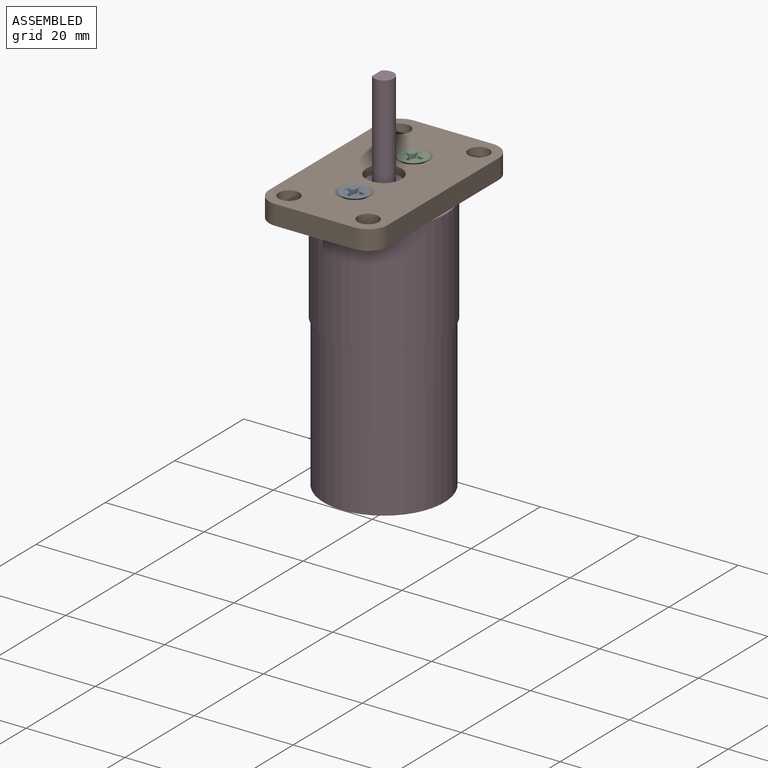
[diagram: assembled view]
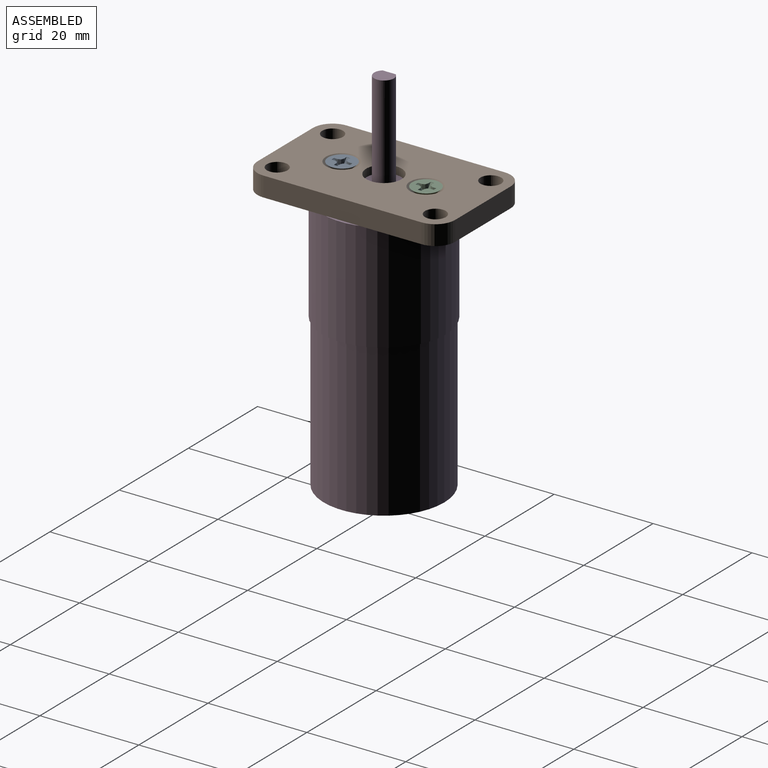
[diagram: assembled view, second angle]
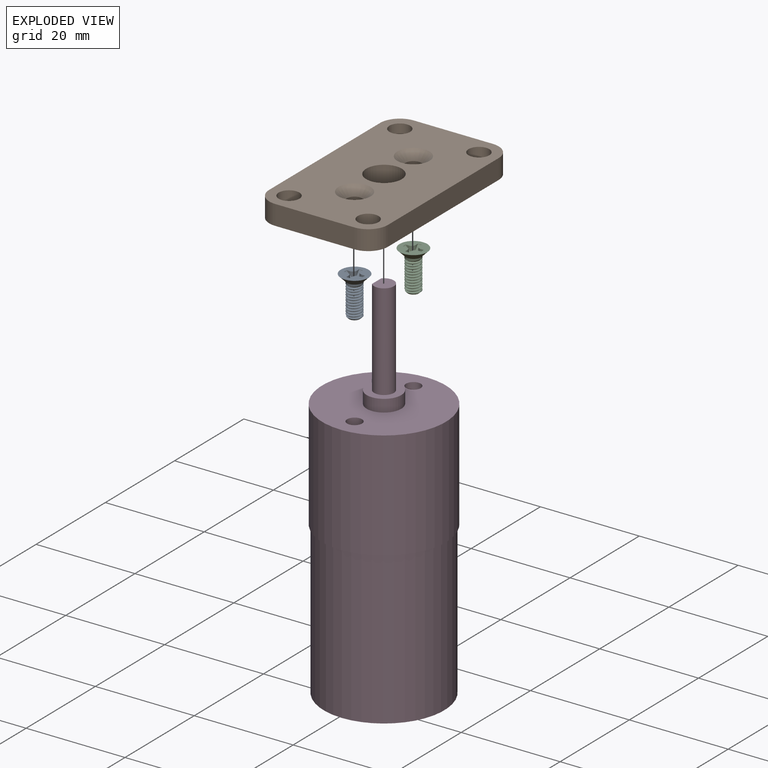
[diagram: exploded view]
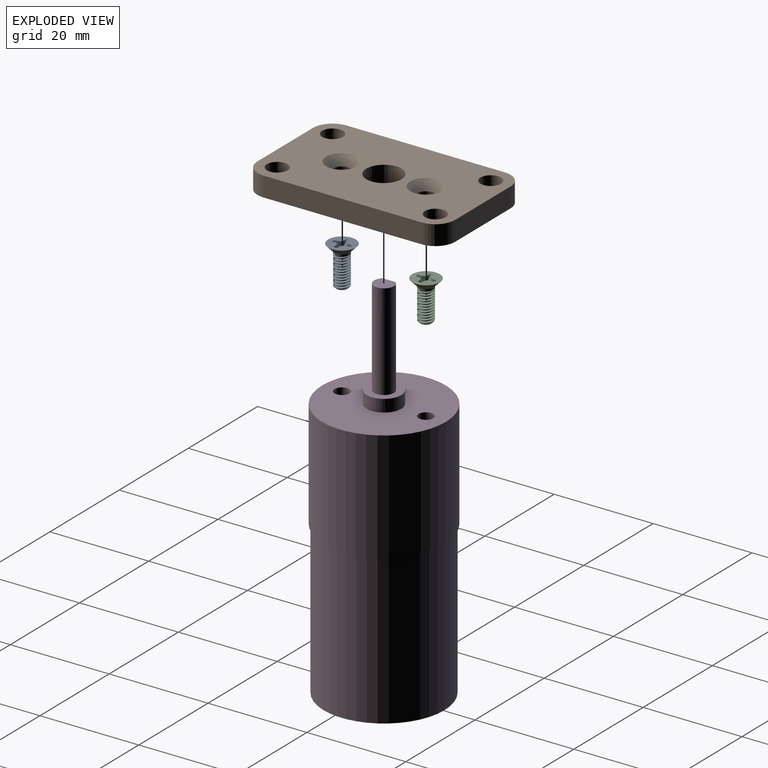
[diagram: exploded view, second angle]
ASSEMBLY  parts=4 mates=3
PART A: 43 faces, bbox 5.7x5.7x8.3 mm
  f0: cone r=2.36mm half-angle=45deg, axis (0,0,1), area 7.3mm2, adj f1,f24,f25,f26,f27,f28,f29,f30
  f1: cone r=1.87mm half-angle=15deg, axis (0,0,1), area 0.1mm2, adj f0,f20,f28,f39
  f2: cylinder r=1.18mm len=5.98mm, axis (0,0,1), area 5.5mm2, adj f3,f5,f22,f23
  f3: cone r=1.5mm half-angle=45deg, axis (0,0,1), area 2mm2, adj f2,f4,f21,f22,f23
  f4: cone r=1.5mm half-angle=45deg, axis (0,0,1), area 0.4mm2, adj f3,f7,f22,f23
  f5: cone r=1.5mm half-angle=45deg, axis (0,0,1), area 2mm2, adj f2,f18,f22,f23
  f6: cylinder r=1.5mm len=3mm, axis (0,0,-1), area 0.6mm2, adj f7,f8,f22,f23
  f7: cylinder r=1.5mm len=1.07mm, axis (0,0,-1), area 0mm2, adj f4,f6,f23
  f8: cylinder r=1.5mm len=3mm, axis (0,0,-1), area 0.6mm2, adj f6,f9,f22,f23
  f9: cylinder r=1.5mm len=3mm, axis (0,0,-1), area 0.6mm2, adj f8,f10,f22,f23
  f10: cylinder r=1.5mm len=3mm, axis (0,0,-1), area 0.6mm2, adj f9,f11,f22,f23
  f11: cylinder r=1.5mm len=3mm, axis (0,0,-1), area 0.6mm2, adj f10,f12,f22,f23
  f12: cylinder r=1.5mm len=3mm, axis (0,0,-1), area 0.6mm2, adj f11,f13,f22,f23
  f13: cylinder r=1.5mm len=3mm, axis (0,0,-1), area 0.6mm2, adj f12,f14,f22,f23
  f14: cylinder r=1.5mm len=3mm, axis (0,0,-1), area 0.6mm2, adj f13,f15,f22,f23
  f15: cylinder r=1.5mm len=3mm, axis (0,0,-1), area 0.6mm2, adj f14,f16,f22,f23
  f16: cylinder r=1.5mm len=3mm, axis (0,0,-1), area 0.6mm2, adj f15,f17,f22,f23
  f17: cylinder r=1.5mm len=3mm, axis (0,0,-1), area 0.6mm2, adj f16,f18,f22,f23
  f18: cylinder r=1.5mm len=3mm, axis (0,0,-1), area 3.8mm2, adj f5,f17,f19,f22,f23
  f19: cone r=2.8mm half-angle=45deg, axis (0,0,1), area 24.8mm2, adj f18,f20
  f20: plane 5.6x5.6mm, normal (0,0,1), area 19mm2, adj f1,f19,f24,f25,f26,f27,f28,f29
  f21: plane 2.25x2.25mm, normal (0,0,-1), area 4mm2, adj f3
  f22: bspline ~6.3x2.96mm, area 37.7mm2, adj f2,f3,f4,f5,f6,f8,f9,f10
  f23: bspline ~6.67x3mm, area 37.7mm2, adj f2,f3,f4,f5,f6,f7,f8,f9
  f24: cone r=1.87mm half-angle=15deg, axis (0,0,1), area 0.1mm2, adj f0,f20,f25,f33
  f25: plane 0.92x0.87mm, normal (-1,0,0.09), area 0.3mm2, adj f0,f20,f24,f26
  f26: plane 1.35x0.74mm, normal (-0.92,-0.38,0.09), area 0.6mm2, adj f0,f20,f25,f27
  f27: plane 1.35x0.74mm, normal (-0.38,-0.92,0.09), area 0.6mm2, adj f0,f20,f26,f28
  f28: plane 0.92x0.87mm, normal (0,-1,0.09), area 0.3mm2, adj f0,f1,f20,f27
  f29: cone r=1.87mm half-angle=15deg, axis (0,0,1), area 0.1mm2, adj f0,f20,f30,f38
  f30: plane 0.92x0.87mm, normal (0,-1,0.09), area 0.3mm2, adj f0,f20,f29,f31
  f31: plane 1.35x0.74mm, normal (0.38,-0.92,0.09), area 0.6mm2, adj f0,f20,f30,f32
  f32: plane 1.35x0.74mm, normal (0.92,-0.38,0.09), area 0.6mm2, adj f0,f20,f31,f33
  f33: plane 0.92x0.87mm, normal (1,0,0.09), area 0.3mm2, adj f0,f20,f24,f32
  f34: cone r=1.87mm half-angle=15deg, axis (0,0,1), area 0.1mm2, adj f0,f20,f35,f42
  f35: plane 0.92x0.87mm, normal (1,0,0.09), area 0.3mm2, adj f0,f20,f34,f36
  f36: plane 1.35x0.74mm, normal (0.92,0.38,0.09), area 0.6mm2, adj f0,f20,f35,f37
  f37: plane 1.35x0.74mm, normal (0.38,0.92,0.09), area 0.6mm2, adj f0,f20,f36,f38
  f38: plane 0.92x0.87mm, normal (0,1,0.09), area 0.3mm2, adj f0,f20,f29,f37
  f39: plane 0.92x0.87mm, normal (0,1,0.09), area 0.3mm2, adj f0,f1,f20,f40
  f40: plane 1.35x0.74mm, normal (-0.38,0.92,0.09), area 0.6mm2, adj f0,f20,f39,f41
  f41: plane 1.35x0.74mm, normal (-0.92,0.38,0.09), area 0.6mm2, adj f0,f20,f40,f42
  f42: plane 0.92x0.87mm, normal (-1,0,0.09), area 0.3mm2, adj f0,f20,f34,f41
PART B: 19 faces, bbox 24x40x4 mm
  f0: plane 32x4mm, normal (-1,0,0), area 128mm2, adj f1,f14,f15,f16
  f1: cylinder r=4mm len=4mm, axis (0,0,-1), area 25.1mm2, adj f0,f2,f15,f16
  f2: plane 16x4mm, normal (0,-1,0), area 64mm2, adj f1,f3,f15,f16
  f3: cylinder r=4mm len=4mm, axis (0,0,-1), area 25.1mm2, adj f2,f4,f15,f16
  f4: plane 32x4mm, normal (1,0,0), area 128mm2, adj f3,f5,f15,f16
  f5: cylinder r=4mm len=4mm, axis (0,0,-1), area 25.1mm2, adj f4,f6,f15,f16
  f6: plane 16x4mm, normal (0,1,0), area 64mm2, adj f5,f14,f15,f16
  f7: cylinder r=3.6mm len=7.2mm, axis (0,0,-1), area 90.5mm2, adj f15,f16
  f8: cylinder r=1.6mm len=3.2mm, axis (0,0,-1), area 23.6mm2, adj f16,f18
  f9: cylinder r=1.6mm len=3.2mm, axis (0,0,-1), area 23.6mm2, adj f16,f17
  f10: cylinder r=2.1mm len=4.2mm, axis (0,0,-1), area 52.8mm2, adj f15,f16
  f11: cylinder r=2.1mm len=4.2mm, axis (0,0,-1), area 52.8mm2, adj f15,f16
  f12: cylinder r=2.1mm len=4.2mm, axis (0,0,-1), area 52.8mm2, adj f15,f16
  f13: cylinder r=2.1mm len=4.2mm, axis (0,0,-1), area 52.8mm2, adj f15,f16
  f14: cylinder r=4mm len=4mm, axis (0,0,-1), area 25.1mm2, adj f0,f6,f15,f16
  f15: plane 40x24mm, normal (0,0,1), area 783.8mm2, adj f0,f1,f2,f3,f4,f5,f6,f7
  f16: plane 40x24mm, normal (0,0,-1), area 834mm2, adj f0,f1,f2,f3,f4,f5,f6,f7
  f17: cone r=1.6mm half-angle=45deg, axis (0,0,1), area 35.6mm2, adj f9,f15
  f18: cone r=1.6mm half-angle=45deg, axis (0,0,1), area 35.6mm2, adj f8,f15
PART C: same geometry as A
PART D: 15 faces, bbox 25x25x74.8 mm
  f0: plane 4x3.5mm, normal (0,0,1), area 11.7mm2, adj f8,f9
  f1: cylinder r=12.5mm len=25mm, axis (0,0,1), area 1727.9mm2, adj f2,f3
  f2: plane 25x25mm, normal (0,0,-1), area 23.3mm2, adj f1,f4
  f3: plane 25x25mm, normal (0,0,1), area 438.3mm2, adj f1,f6,f11,f13
  f4: cylinder r=12.2mm len=30.8mm, axis (0,0,1), area 2361mm2, adj f2,f5
  f5: plane 24.4x24.4mm, normal (0,0,-1), area 467.6mm2, adj f4
  f6: cylinder r=3.5mm len=7mm, axis (0,0,-1), area 55mm2, adj f3,f7
  f7: plane 7x7mm, normal (0,0,1), area 25.9mm2, adj f6,f8
  f8: cylinder r=2mm len=19.5mm, axis (0,0,-1), area 194.5mm2, adj f0,f7,f9,f10
  f9: plane 17.5x2.65mm, normal (0,-1,0), area 46.3mm2, adj f0,f8,f10
  f10: plane 2.65x0.5mm, normal (0,0,1), area 0.9mm2, adj f8,f9
  f11: cylinder r=1.5mm len=4mm, axis (0,0,1), area 37.7mm2, adj f3,f12
  f12: plane 3x3mm, normal (0,0,1), area 7.1mm2, adj f11
  f13: cylinder r=1.5mm len=4mm, axis (0,0,1), area 37.7mm2, adj f3,f14
  f14: plane 3x3mm, normal (0,0,1), area 7.1mm2, adj f13
PLACE A t=(-17.81,14.63,11.68)mm
PLACE B t=(-17.81,23.13,9.33)mm
PLACE C t=(-17.81,31.63,11.68)mm
PLACE D rot(axis=(0,0,-1),90deg) t=(-17.81,23.13,9.33)mm
MATE fastened D.f11 <-> B.f9  axis (0,0,1) through (-17.81,14.63,9.33)mm
MATE fastened B.f9 <-> A.f0  axis (0,0,1) through (-17.81,14.63,13.33)mm
MATE fastened C.f0 <-> B.f8  axis (0,0,1) through (-17.81,31.63,13.33)mm
